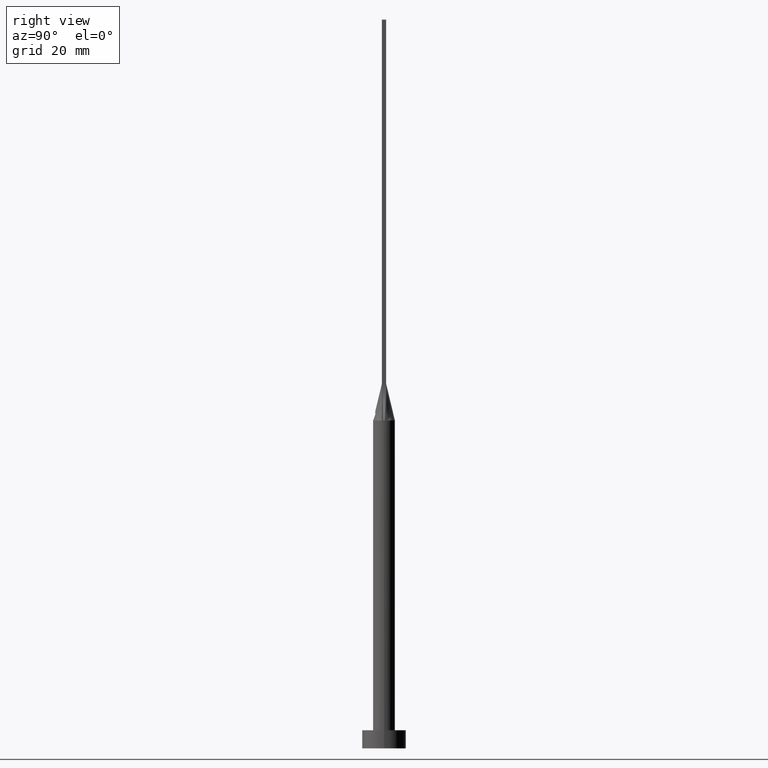
[diagram: clean part render]
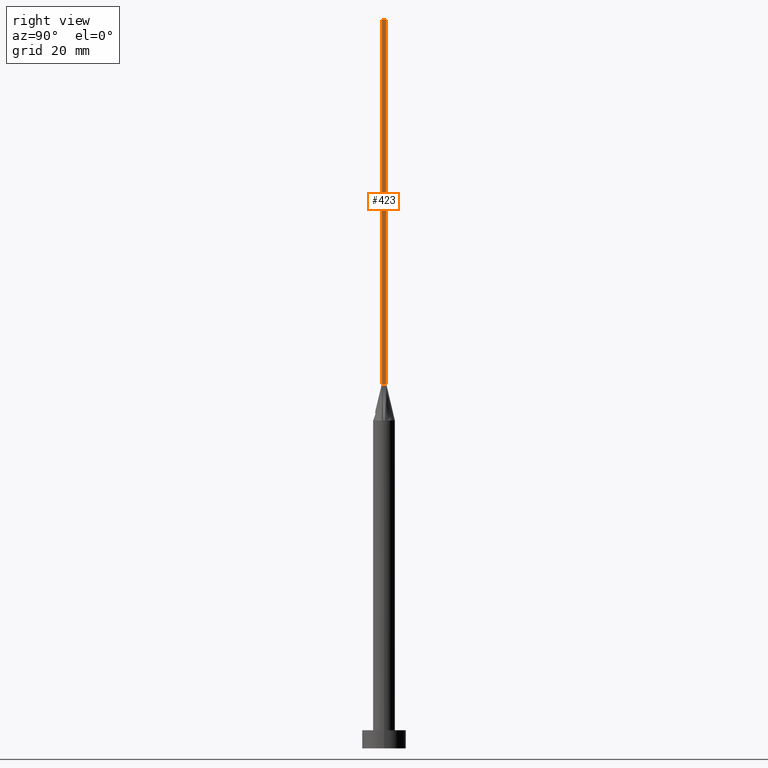
[diagram: same view with one face highlighted and labeled with its STEP entity id]
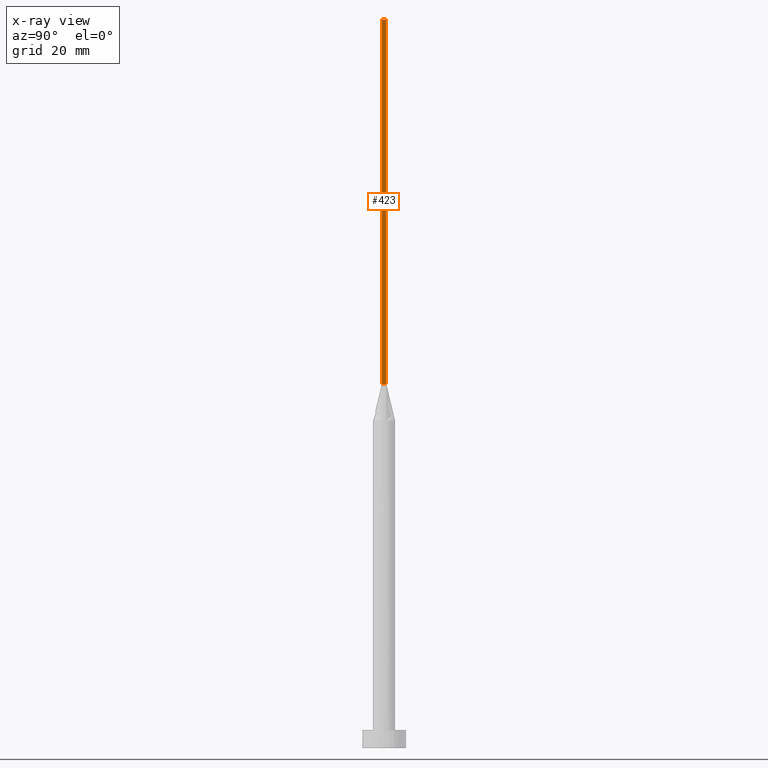
[diagram: x-ray of the same camera — body ghosted, the highlighted face saturated]
A machine part, right view. The second image highlights one B-rep face of the part: STEP entity #423.
The next image is the same camera in x-ray: the body ghosted, the highlighted face saturated — about 0% of this face is hidden behind the body in this view.
In plain terms, the highlighted planar face has unit normal (-1, 0, 0).
Its self-contained STEP definition (entity closure, byte-faithful):
#17 = VECTOR ( 'NONE', #195, 1000.000000000000000 ) ;
#36 = CARTESIAN_POINT ( 'NONE',  ( 2.750000000000000000, 0.6000000000000001998, 200.0000000000000000 ) ) ;
#68 = VERTEX_POINT ( 'NONE', #300 ) ;
#69 = VECTOR ( 'NONE', #416, 1000.000000000000000 ) ;
#71 = ORIENTED_EDGE ( 'NONE', *, *, #348, .F. ) ;
#78 = DIRECTION ( 'NONE',  ( -1.000000000000000000, 0.000000000000000000, 0.000000000000000000 ) ) ;
#86 = VECTOR ( 'NONE', #255, 1000.000000000000000 ) ;
#99 = EDGE_CURVE ( 'NONE', #221, #544, #455, .T. ) ;
#136 = EDGE_CURVE ( 'NONE', #221, #68, #335, .T. ) ;
#153 = CARTESIAN_POINT ( 'NONE',  ( 2.750000000000000000, -0.5999999999999997558, 200.0000000000000000 ) ) ;
#162 = DIRECTION ( 'NONE',  ( 0.000000000000000000, 0.000000000000000000, 1.000000000000000000 ) ) ;
#172 = EDGE_CURVE ( 'NONE', #68, #305, #517, .T. ) ;
#195 = DIRECTION ( 'NONE',  ( -0.000000000000000000, -0.000000000000000000, -1.000000000000000000 ) ) ;
#202 = FACE_OUTER_BOUND ( 'NONE', #268, .T. ) ;
#221 = VERTEX_POINT ( 'NONE', #557 ) ;
#238 = LINE ( 'NONE', #36, #86 ) ;
#243 = CARTESIAN_POINT ( 'NONE',  ( 2.750000000000000000, 0.6000000000000001998, 100.0000000000000000 ) ) ;
#255 = DIRECTION ( 'NONE',  ( -0.000000000000000000, -0.000000000000000000, -1.000000000000000000 ) ) ;
#268 = EDGE_LOOP ( 'NONE', ( #546, #71, #504, #338 ) ) ;
#300 = CARTESIAN_POINT ( 'NONE',  ( 2.750000000000000000, -0.5999999999999997558, 100.0000000000000000 ) ) ;
#305 = VERTEX_POINT ( 'NONE', #571 ) ;
#321 = AXIS2_PLACEMENT_3D ( 'NONE', #575, #78, #162 ) ;
#335 = LINE ( 'NONE', #457, #17 ) ;
#338 = ORIENTED_EDGE ( 'NONE', *, *, #136, .T. ) ;
#348 = EDGE_CURVE ( 'NONE', #544, #305, #238, .T. ) ;
#408 = CARTESIAN_POINT ( 'NONE',  ( 2.750000000000000000, 0.6000000000000001998, 200.0000000000000000 ) ) ;
#414 = DIRECTION ( 'NONE',  ( -0.000000000000000000, 1.000000000000000000, -0.000000000000000000 ) ) ;
#416 = DIRECTION ( 'NONE',  ( 0.000000000000000000, 1.000000000000000000, 0.000000000000000000 ) ) ;
#423 = ADVANCED_FACE ( 'NONE', ( #202 ), #470, .F. ) ;
#450 = VECTOR ( 'NONE', #414, 1000.000000000000000 ) ;
#455 = LINE ( 'NONE', #153, #69 ) ;
#457 = CARTESIAN_POINT ( 'NONE',  ( 2.750000000000000000, -0.5999999999999997558, 200.0000000000000000 ) ) ;
#470 = PLANE ( 'NONE',  #321 ) ;
#504 = ORIENTED_EDGE ( 'NONE', *, *, #99, .F. ) ;
#517 = LINE ( 'NONE', #243, #450 ) ;
#544 = VERTEX_POINT ( 'NONE', #408 ) ;
#546 = ORIENTED_EDGE ( 'NONE', *, *, #172, .T. ) ;
#557 = CARTESIAN_POINT ( 'NONE',  ( 2.750000000000000000, -0.5999999999999997558, 200.0000000000000000 ) ) ;
#571 = CARTESIAN_POINT ( 'NONE',  ( 2.750000000000000000, 0.6000000000000001998, 100.0000000000000000 ) ) ;
#575 = CARTESIAN_POINT ( 'NONE',  ( 2.750000000000000000, -0.5999999999999997558, 200.0000000000000000 ) ) ;